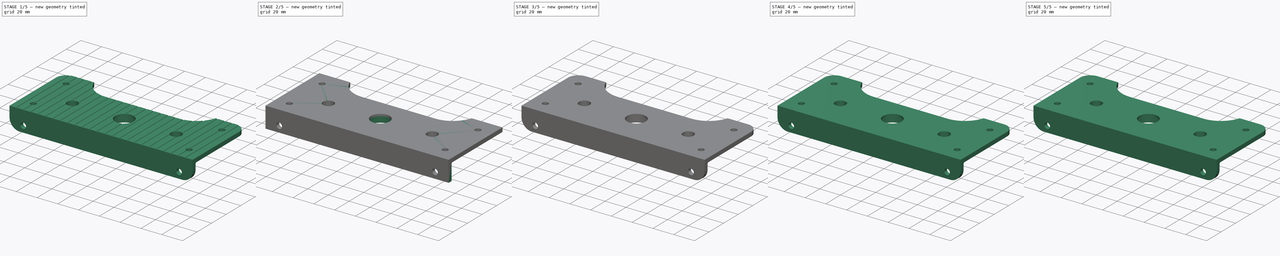
[diagram: build sequence overview — one tinted view per stage of 5, left to right]
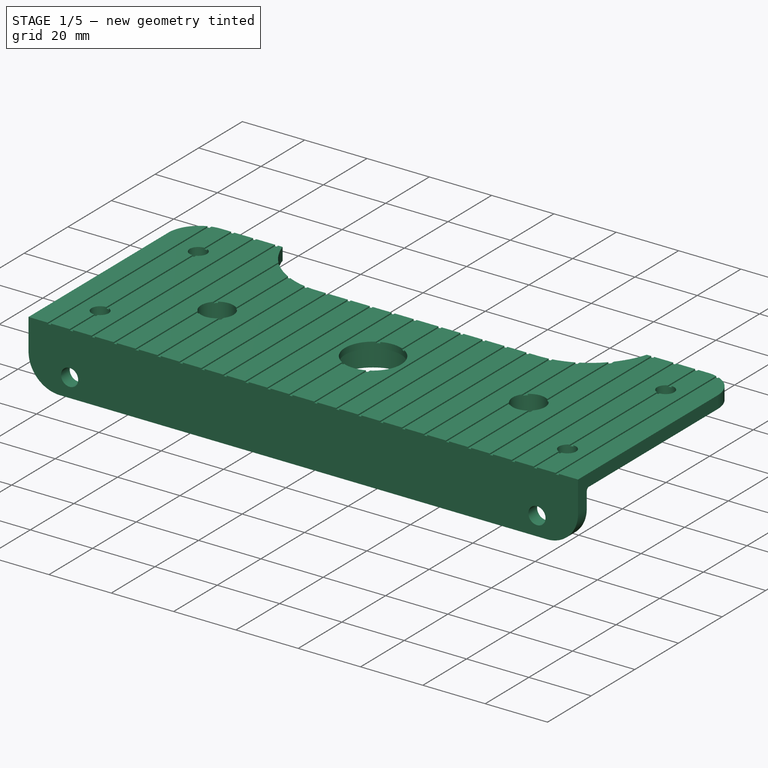
[diagram: stage 1 of 5 — iso view after this stage's code; geometry added in this stage tinted green]
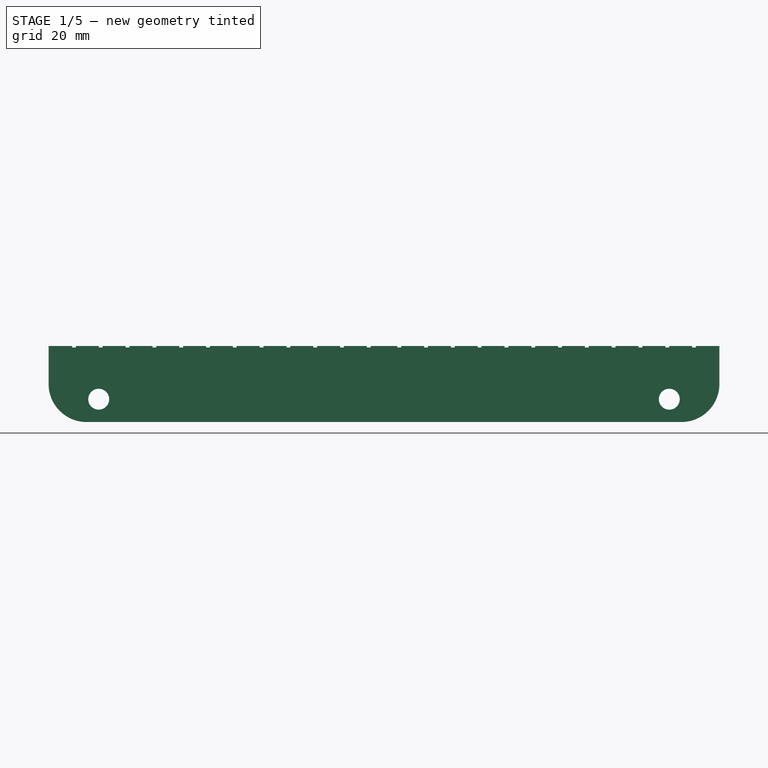
[diagram: stage 1 of 5 — front view after this stage's code; geometry added in this stage tinted green]
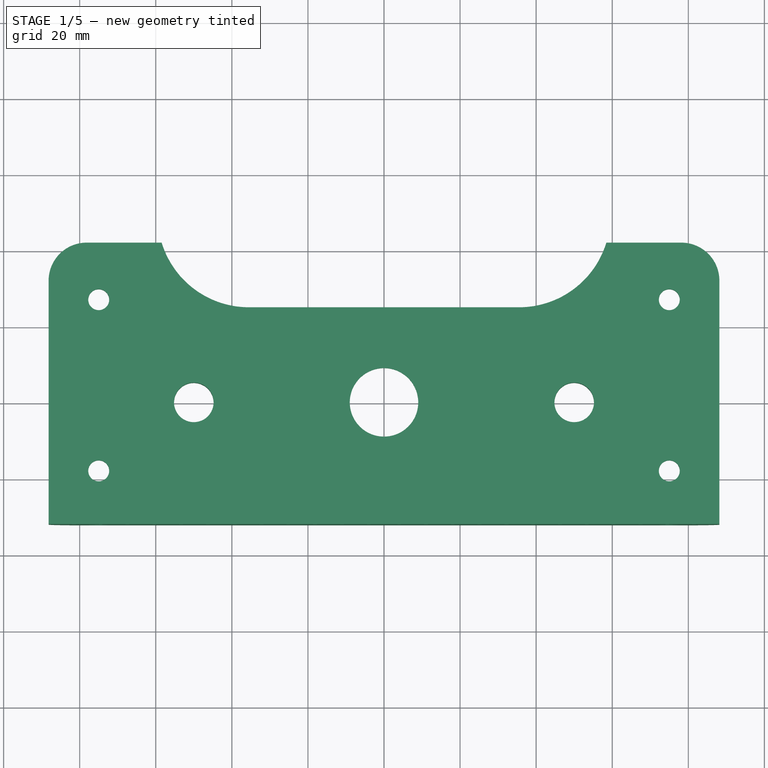
[diagram: stage 1 of 5 — top view after this stage's code; geometry added in this stage tinted green]
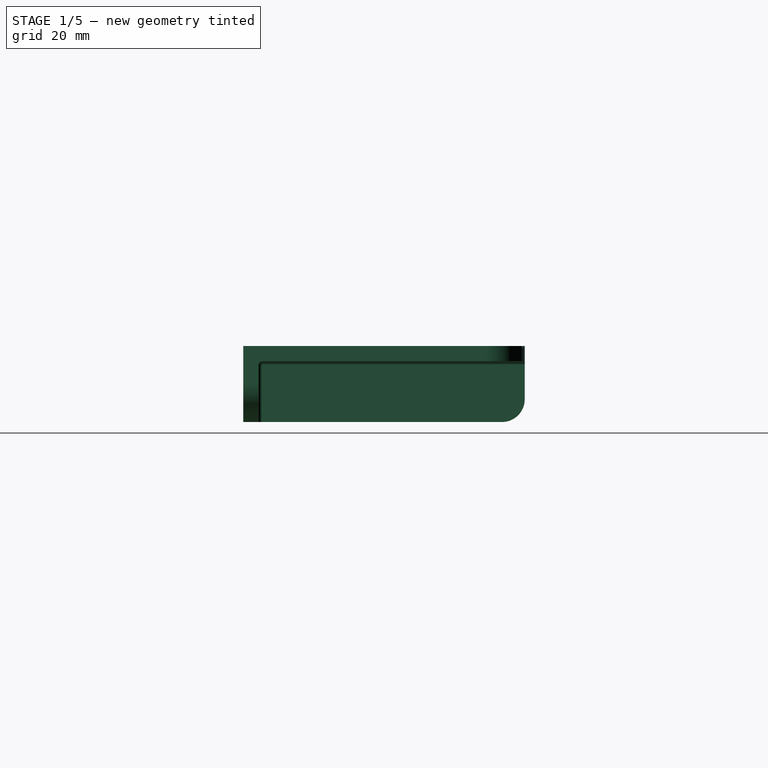
[diagram: stage 1 of 5 — right view after this stage's code; geometry added in this stage tinted green]
FCSTD DOCUMENT  (FreeCAD 0.16R6747 (Git))
Label: z_upper_v2.3
License: All rights reserved
LicenseURL: http://en.wikipedia.org/wiki/All_rights_reserved
objects: Drawing::FeatureViewPython×16, Sketcher::SketchObject×14, PartDesign::Fillet×14, PartDesign::Pocket×8, Drawing::FeatureViewPart×5, PartDesign::Pad×3, Part::Feature×2, PartDesign::LinearPattern×2, Drawing::FeaturePage×1
note: 54 computed .brp shape members not serialized (recipe doc carries the construction recipe); baked Part::Feature solids carry a one-line shape summary decoded from their .brp

FEATURE [Part::Feature] Fillet013001  label="Fillet014"
  shape: bbox 176.5 x 74.16 x 21.41 mm, 163 faces (baked)
FEATURE [Part::Feature] Fillet013001_solid  label="Fillet014 (Solid)"
  shape: bbox 176.5 x 74.16 x 21.41 mm, 163 faces (baked)
FEATURE [Sketcher::SketchObject] Sketch026
  ExternalGeometry = -> [Fillet013001_solid]
  Placement = pos=(0,0,20) rot=(0,0,1;0rad)
  Support = -> Fillet013001_solid [Face29]
  sketch-geometry (4):
    g0: Circle CenterX=-50 CenterY=0 CenterZ=0 NormalX=0 NormalY=0 NormalZ=1 Radius=5.2
    g1: Circle CenterX=-50 CenterY=0 CenterZ=0 NormalX=0 NormalY=0 NormalZ=1 Radius=6.2
    g2: Circle CenterX=50 CenterY=0 CenterZ=0 NormalX=0 NormalY=0 NormalZ=1 Radius=6.2
    g3: Circle CenterX=50 CenterY=0 CenterZ=0 NormalX=0 NormalY=0 NormalZ=1 Radius=5.2
  constraints (8):
    c: Coincident(g0,g1)
    c: Coincident(g0,g-3)
    c: Coincident(g2,g3)
    c: Coincident(g2,g-4)
    c: Radius(g0) = 5.2
    c: Radius(g1) = 6.2
    c: Equal(g0,g3)
    c: Equal(g1,g2)
FEATURE [PartDesign::Pad] Pad002
  Length = 8.6
  Length2 = 100
  Reversed = true
  Sketch = -> Sketch026
  Type = 0
FEATURE [Sketcher::SketchObject] Sketch024
  ExternalGeometry = -> [Fillet013001_solid]
  Placement = pos=(0,0,20) rot=(0,0,1;0rad)
  Support = -> Pad002 [Face62]
  sketch-geometry (4):
    g0: LineSegment StartX=-82.005 StartY=-32 StartZ=0 EndX=-81.005 EndY=-32 EndZ=0
    g1: LineSegment StartX=-81.005 StartY=-32 StartZ=0 EndX=-81.005 EndY=42 EndZ=0
    g2: LineSegment StartX=-81.005 StartY=42 StartZ=0 EndX=-82.005 EndY=42 EndZ=0
    g3: LineSegment StartX=-82.005 StartY=42 StartZ=0 EndX=-82.005 EndY=-32 EndZ=0
  constraints (12):
    c: Coincident(g0,g1)
    c: Coincident(g1,g2)
    c: Coincident(g2,g3)
    c: Coincident(g3,g0)
    c: Horizontal(g0)
    c: Horizontal(g2)
    c: Vertical(g1)
    c: Vertical(g3)
    c: PointOnObject(g0,g-3)
    c: PointOnObject(g1,g-4)
    c: DistanceX(g2,g1) = 1
    c: DistanceX(g0,g-3) = -6.17
FEATURE [PartDesign::Pocket] Pocket006
  Length = 0.4
  Sketch = -> Sketch024
  Type = 0
FEATURE [PartDesign::LinearPattern] LinearPattern
  Direction = -> Sketch024 [H_Axis]
  Length = 77.5
  Occurrences = 12
  Originals = -> [Pocket006]
FEATURE [Sketcher::SketchObject] Sketch025
  Placement = pos=(0,0,20) rot=(0,0,1;0rad)
  Support = -> LinearPattern [Face62]
  sketch-geometry (4):
    g0: LineSegment StartX=81.005 StartY=-32 StartZ=0 EndX=82.005 EndY=-32 EndZ=0
    g1: LineSegment StartX=82.005 StartY=-32 StartZ=0 EndX=82.005 EndY=42 EndZ=0
    g2: LineSegment StartX=82.005 StartY=42 StartZ=0 EndX=81.005 EndY=42 EndZ=0
    g3: LineSegment StartX=81.005 StartY=42 StartZ=0 EndX=81.005 EndY=-32 EndZ=0
  constraints (4):
    c: Coincident(g0,g1)
    c: Coincident(g0,g3)
    c: Coincident(g1,g2)
    c: Coincident(g2,g3)
FEATURE [PartDesign::Pocket] Pocket007
  Length = 0.4
  Sketch = -> Sketch025
  Type = 0
FEATURE [PartDesign::LinearPattern] LinearPattern001
  Direction = -> Sketch025 [H_Axis]
  Length = 77.5
  Occurrences = 12
  Originals = -> [Pocket007]
  Reversed = true
FEATURE [Drawing::FeatureViewPart] Ortho  label="Ortho_0_0"
  Direction = (0,0,1)
  HiddenWidth = 0.15
  LineWidth = 0.35
  Rotation = 90
  Scale = 0.5
  ShowHiddenLines = false
  ShowSmoothLines = false
  Source = -> LinearPattern001
  Tolerance = 0.05
  ViewResult = <blob: 16664 chars omitted>
  Visible = true
  X = 240
  Y = 130
FEATURE [Drawing::FeatureViewPart] Ortho001  label="Ortho_-1_0"
  Direction = (0,-1,0)
  HiddenWidth = 0.15
  LineWidth = 0.35
  Rotation = 180
  Scale = 0.5
  ShowHiddenLines = false
  ShowSmoothLines = false
  Source = -> LinearPattern001
  Tolerance = 0.05
  ViewResult = <blob: 6436 chars omitted>
  Visible = true
  X = 190
  Y = 130
FEATURE [Drawing::FeatureViewPart] Ortho002  label="Ortho_1_0"
  Direction = (0,1,0)
  HiddenWidth = 0.15
  LineWidth = 0.35
  Rotation = 180
  Scale = 0.5
  ShowHiddenLines = false
  ShowSmoothLines = false
  Source = -> LinearPattern001
  Tolerance = 0.05
  ViewResult = <blob: 20864 chars omitted>
  Visible = true
  X = 300
  Y = 130
FEATURE [Drawing::FeatureViewPart] Ortho003  label="Ortho_2_0"
  Direction = (0,0,-1)
  HiddenWidth = 0.15
  LineWidth = 0.35
  Rotation = -90
  Scale = 0.5
  ShowHiddenLines = false
  ShowSmoothLines = false
  Source = -> LinearPattern001
  Tolerance = 0.05
  ViewResult = <blob: 10561 chars omitted>
  Visible = true
  X = 160
  Y = 130
FEATURE [Drawing::FeatureViewPart] Ortho004  label="Ortho_0_1"
  Direction = (-1,0,0)
  HiddenWidth = 0.15
  LineWidth = 0.35
  Rotation = -90
  Scale = 0.5
  ShowHiddenLines = false
  ShowSmoothLines = false
  Source = -> LinearPattern001
  Tolerance = 0.05
  ViewResult = <blob: 2745 chars omitted>
  Visible = true
  X = 240
  Y = 60
FEATURE [Drawing::FeatureViewPython] text001  label="'C'"  # drawing view (typed FeaturePython)
  Rotation = 0
  ViewResult = <g> <text x="115.000000" y="100.000000" font-family="inherit" font-size="5" fill="rgb(0,0,0)" text-anchor="inherit" transform="rotate(0.000000 115.000000,100.000000)" >'C'</text> </g>
  Visible = true
  X = 0
  Y = 0
  click1_x = 115
  click1_y = 100
  rotation = 0
  text = 'C'
  textRenderer_addText_color = rgb(0,0,0)
  textRenderer_addText_family = inherit
  textRenderer_addText_size = 5
FEATURE [Drawing::FeatureViewPython] grabPoint001  # drawing view (typed FeaturePython)
  Rotation = 0
  ViewResult = <g> <line x1="153.60408147" y1="118.518257105" x2="153.60408147" y2="118.518257105" style="stroke:rgb(0,0,0);stroke-width:0.01" /> </g> 
  Visible = true
  X = 0
  Y = 0
  click1_x = 153.604
  click1_y = 118.518
FEATURE [Drawing::FeatureViewPython] grabPoint002  # drawing view (typed FeaturePython)
  Rotation = 0
  ViewResult = <g> <line x1="195.32029784" y1="111.887865099" x2="195.32029784" y2="111.887865099" style="stroke:rgb(0,0,0);stroke-width:0.01" /> </g> 
  Visible = true
  X = 0
  Y = 0
  click1_x = 195.32
  click1_y = 111.888
FEATURE [Drawing::FeatureViewPython] weld002  # drawing view (typed FeaturePython)
  Rotation = 0
  ViewResult = <g   >\n<line x1="128.860338" y1="105.358515" x2="153.604081" y2="118.518257" style="stroke:rgb(0,0,255);stroke-width:0.50" />\n<polygon points="153.604081,118.518257 151.424946,116.226671 150.072484,116.640008 150.485821,117.992470" style="fill:rgb(0,0,255);stroke:rgb(0,0,255);stroke-width:0" />\n<line x1="128.860338" y1="105.358515" x2="102.480741" y2="105.358515" style="stroke:rgb(0,0,255);stroke-width:0.50" />\n</g> 
  Visible = true
  X = 0
  Y = 0
  arrowL1 = 3
  arrowL2 = 1
  arrowW = 2
  click1_x = 128.86
  click1_y = 105.359
  click2_x = 102.481
  click2_y = 104.08
  lineColor = rgb(0,0,255)
  strokeWidth = 0.5
  textRenderer_color = rgb(0,0,255)
  textRenderer_family = inherit
  textRenderer_size = 3.6
FEATURE [Drawing::FeatureViewPython] text002  # drawing view (typed FeaturePython)
  Rotation = 0
  ViewResult = <g> <text x="206.844559" y="78.246342" font-family="inherit" font-size="5" fill="rgb(0,0,0)" text-anchor="inherit" transform="rotate(0.000000 206.844559,78.246342)" >'A'</text> </g>
  Visible = true
  X = 0
  Y = 0
  click1_x = 206.845
  click1_y = 78.2463
  rotation = 0
  text = 'A'
  textRenderer_addText_color = rgb(0,0,0)
  textRenderer_addText_family = inherit
  textRenderer_addText_size = 5
FEATURE [Drawing::FeatureViewPython] text003  # drawing view (typed FeaturePython)
  Rotation = 0
  ViewResult = <g> <text x="268.779729" y="78.246342" font-family="inherit" font-size="5" fill="rgb(0,0,0)" text-anchor="inherit" transform="rotate(0.000000 268.779729,78.246342)" >'A'</text> </g>
  Visible = true
  X = 0
  Y = 0
  click1_x = 268.78
  click1_y = 78.2463
  rotation = 0
  text = 'A'
  textRenderer_addText_color = rgb(0,0,0)
  textRenderer_addText_family = inherit
  textRenderer_addText_size = 5
FEATURE [Drawing::FeatureViewPython] text004  # drawing view (typed FeaturePython)
  Rotation = 0
  ViewResult = <g> <text x="308.919393" y="113.185342" font-family="inherit" font-size="5" fill="rgb(0,0,0)" text-anchor="inherit" transform="rotate(0.000000 308.919393,113.185342)" >'C'</text> </g>
  Visible = true
  X = 0
  Y = 0
  click1_x = 308.919
  click1_y = 113.185
  rotation = 0
  text = 'C'
  textRenderer_addText_color = rgb(0,0,0)
  textRenderer_addText_family = inherit
  textRenderer_addText_size = 5
FEATURE [Drawing::FeatureViewPython] weld001  # drawing view (typed FeaturePython)
  Rotation = 0
  ViewResult = <g   >\n<line x1="204.359769" y1="79.413300" x2="195.320298" y2="111.887865" style="stroke:rgb(0,0,255);stroke-width:0.50" />\n<polygon points="195.320298,111.887865 197.088153,109.265903 196.392940,108.034368 195.161405,108.729582" style="fill:rgb(0,0,255);stroke:rgb(0,0,255);stroke-width:0" />\n<line x1="204.359769" y1="79.413300" x2="215.797011" y2="79.413300" style="stroke:rgb(0,0,255);stroke-width:0.50" />\n</g> 
  Visible = true
  X = 0
  Y = 0
  arrowL1 = 3
  arrowL2 = 1
  arrowW = 2
  click1_x = 204.36
  click1_y = 79.4133
  click2_x = 215.797
  click2_y = 80.4923
  lineColor = rgb(0,0,255)
  strokeWidth = 0.5
  textRenderer_color = rgb(0,0,255)
  textRenderer_family = inherit
  textRenderer_size = 3.6
FEATURE [Drawing::FeatureViewPython] weld003  # drawing view (typed FeaturePython)
  Rotation = 0
  ViewResult = <g   >\n<line x1="215.666279" y1="79.431692" x2="242.500000" y2="100.065700" style="stroke:rgb(0,0,255);stroke-width:0.50" />\n<polygon points="242.500000,100.065700 240.731390,97.444247 239.329086,97.627400 239.512240,99.029703" style="fill:rgb(0,0,255);stroke:rgb(0,0,255);stroke-width:0" />\n<line x1="215.666279" y1="79.431692" x2="215.732252" y2="79.431692" style="stroke:rgb(0,0,255);stroke-width:0.50" />\n</g> 
  Visible = true
  X = 0
  Y = 0
  arrowL1 = 3
  arrowL2 = 1
  arrowW = 2
  click1_x = 215.666
  click1_y = 79.4317
  click2_x = 215.732
  click2_y = 79.3657
  lineColor = rgb(0,0,255)
  strokeWidth = 0.5
  textRenderer_color = rgb(0,0,255)
  textRenderer_family = inherit
  textRenderer_size = 3.6
FEATURE [Drawing::FeatureViewPython] grabPoint003  # drawing view (typed FeaturePython)
  Rotation = 0
  ViewResult = <g> <line x1="247.839545002" y1="69.1989897957" x2="247.839545002" y2="69.1989897957" style="stroke:rgb(0,0,0);stroke-width:0.01" /> </g> 
  Visible = true
  X = 0
  Y = 0
  click1_x = 247.84
  click1_y = 69.199
FEATURE [Drawing::FeatureViewPython] grabPoint004  # drawing view (typed FeaturePython)
  Rotation = 0
  ViewResult = <g> <line x1="291.274166274" y1="93.3673354905" x2="291.274166274" y2="93.3673354905" style="stroke:rgb(0,0,0);stroke-width:0.01" /> </g> 
  Visible = true
  X = 0
  Y = 0
  click1_x = 291.274
  click1_y = 93.3673
FEATURE [Drawing::FeatureViewPython] grabPoint005  # drawing view (typed FeaturePython)
  Rotation = 0
  ViewResult = <g> <line x1="297.544255959" y1="121.867743149" x2="297.544255959" y2="121.867743149" style="stroke:rgb(0,0,0);stroke-width:0.01" /> </g> 
  Visible = true
  X = 0
  Y = 0
  click1_x = 297.544
  click1_y = 121.868
FEATURE [Drawing::FeatureViewPython] weld004  # drawing view (typed FeaturePython)
  Rotation = 0
  ViewResult = <g   >\n<line x1="267.675829" y1="79.687140" x2="247.839545" y2="69.198990" style="stroke:rgb(0,0,255);stroke-width:0.50" />\n<polygon points="247.839545,69.198990 250.024229,71.485287 251.375685,71.068673 250.959071,69.717217" style="fill:rgb(0,0,255);stroke:rgb(0,0,255);stroke-width:0" />\n<line x1="267.675829" y1="79.687140" x2="276.225951" y2="79.687140" style="stroke:rgb(0,0,255);stroke-width:0.50" />\n</g> 
  Visible = true
  X = 0
  Y = 0
  arrowL1 = 3
  arrowL2 = 1
  arrowW = 2
  click1_x = 267.676
  click1_y = 79.6871
  click2_x = 276.226
  click2_y = 79.1171
  lineColor = rgb(0,0,255)
  strokeWidth = 0.5
  textRenderer_color = rgb(0,0,255)
  textRenderer_family = inherit
  textRenderer_size = 3.6
FEATURE [Drawing::FeatureViewPython] grabPoint006  # drawing view (typed FeaturePython)
  Rotation = 0
  ViewResult = <g> <line x1="291.061346544" y1="87.8223530852" x2="291.061346544" y2="87.8223530852" style="stroke:rgb(0,0,0);stroke-width:0.01" /> </g> 
  Visible = true
  X = 0
  Y = 0
  click1_x = 291.061
  click1_y = 87.8224
FEATURE [Drawing::FeatureViewPython] weld005  # drawing view (typed FeaturePython)
  Rotation = 0
  ViewResult = <g   >\n<line x1="276.065787" y1="79.648544" x2="291.061347" y2="87.822353" style="stroke:rgb(0,0,255);stroke-width:0.50" />\n<polygon points="291.061347,87.822353 288.905847,85.508520 287.549214,85.907953 287.948647,87.264586" style="fill:rgb(0,0,255);stroke:rgb(0,0,255);stroke-width:0" />\n<line x1="276.065787" y1="79.648544" x2="276.065787" y2="79.648544" style="stroke:rgb(0,0,255);stroke-width:0.50" />\n</g> 
  Visible = true
  X = 0
  Y = 0
  arrowL1 = 3
  arrowL2 = 1
  arrowW = 2
  click1_x = 276.066
  click1_y = 79.6485
  click2_x = 276.066
  click2_y = 79.6485
  lineColor = rgb(0,0,255)
  strokeWidth = 0.5
  textRenderer_color = rgb(0,0,255)
  textRenderer_family = inherit
  textRenderer_size = 3.6
FEATURE [Drawing::FeatureViewPython] weld007  # drawing view (typed FeaturePython)
  Rotation = 0
  ViewResult = <g   >\n<line x1="307.936481" y1="114.007462" x2="297.544256" y2="121.867743" style="stroke:rgb(0,0,255);stroke-width:0.50" />\n<polygon points="297.544256,121.867743 300.540172,120.855574 300.734488,119.454774 299.333688,119.260458" style="fill:rgb(0,0,255);stroke:rgb(0,0,255);stroke-width:0" />\n<line x1="307.936481" y1="114.007462" x2="316.894210" y2="114.007462" style="stroke:rgb(0,0,255);stroke-width:0.50" />\n</g> 
  Visible = true
  X = 0
  Y = 0
  arrowL1 = 3
  arrowL2 = 1
  arrowW = 2
  click1_x = 307.936
  click1_y = 114.007
  click2_x = 316.894
  click2_y = 115.054
  lineColor = rgb(0,0,255)
  strokeWidth = 0.5
  textRenderer_color = rgb(0,0,255)
  textRenderer_family = inherit
  textRenderer_size = 3.6
FEATURE [Drawing::FeaturePage] Page
  EditableTexts = AUTHOR NAME | CREATION DATE | SUPERVISOR NAME | CHECK DATE | SCALE | WEIGHT | NUMBER | SHEET | TITLE | SUBTITLE
  Group = -> [Ortho,Ortho001,Ortho002,Ortho003,Ortho004,text001,grabPoint001,grabPoint002,weld002,text002,text003,text004,weld001,weld003,grabPoint003,grabPoint004,grabPoint005,weld004,grabPoint006,weld005,weld007]
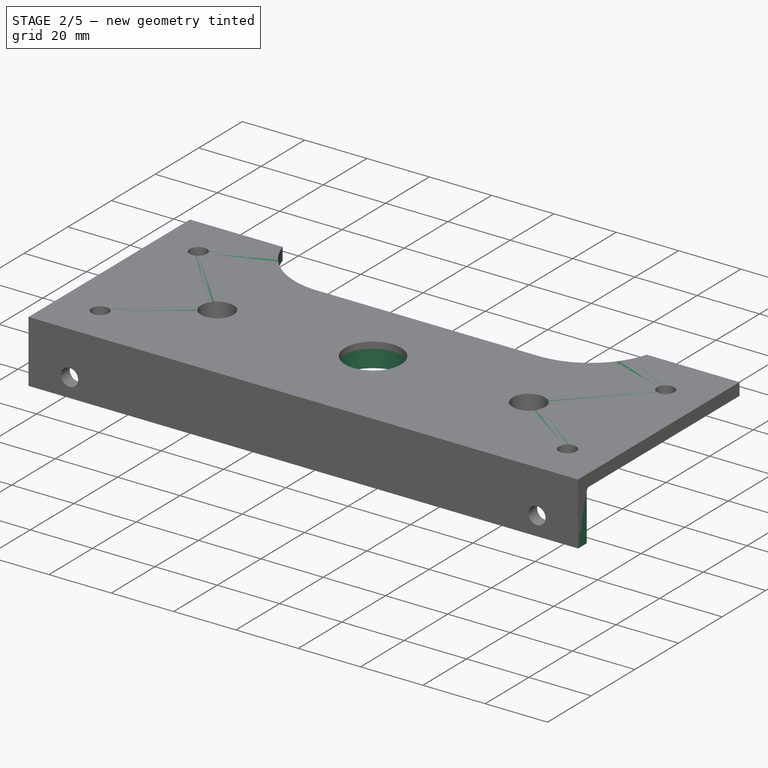
[diagram: stage 2 of 5 — iso view after this stage's code; geometry added in this stage tinted green]
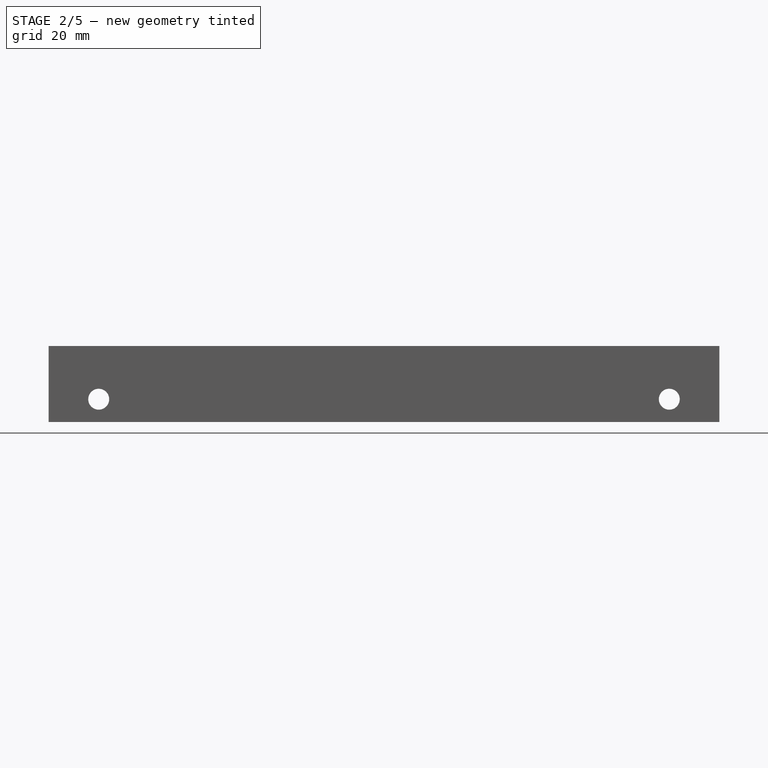
[diagram: stage 2 of 5 — front view after this stage's code; geometry added in this stage tinted green]
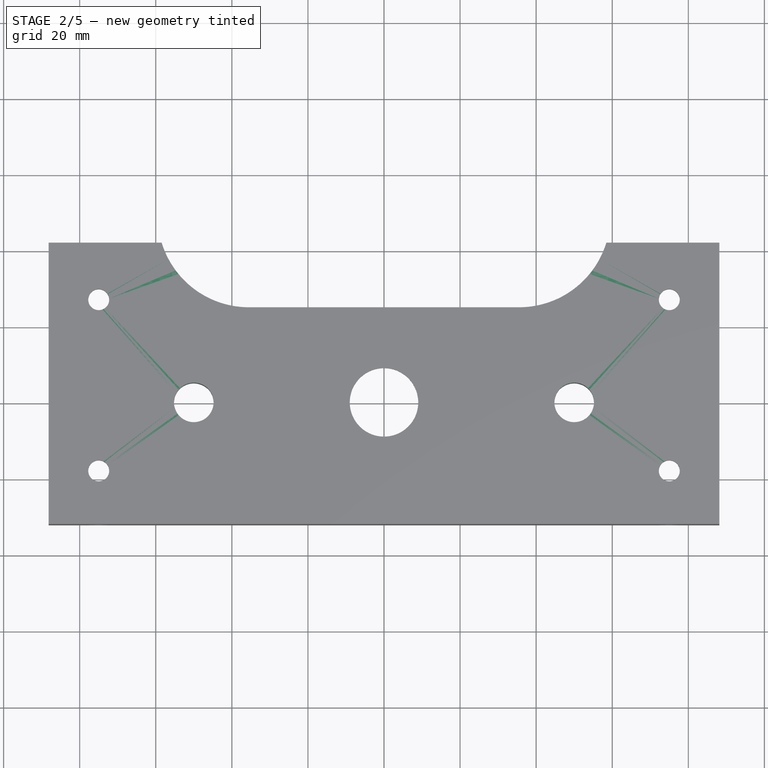
[diagram: stage 2 of 5 — top view after this stage's code; geometry added in this stage tinted green]
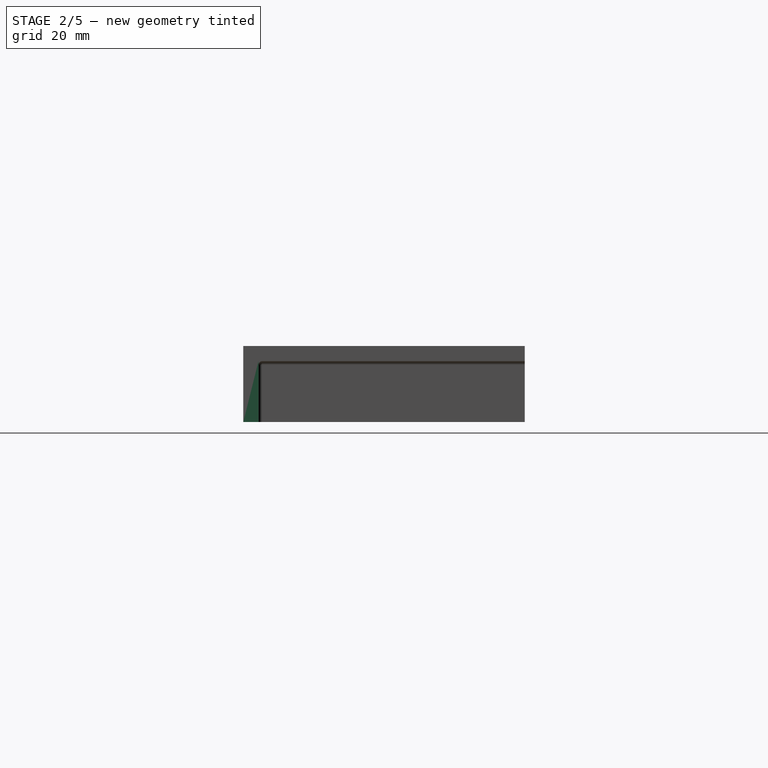
[diagram: stage 2 of 5 — right view after this stage's code; geometry added in this stage tinted green]
FEATURE [Sketcher::SketchObject] Sketch
  sketch-geometry (17):
    g0: Circle CenterX=0 CenterY=0 CenterZ=0 NormalX=0 NormalY=0 NormalZ=1 Radius=9
    g1: LineSegment StartX=-88.175 StartY=42 StartZ=0 EndX=88.175 EndY=42 EndZ=0
    g2: LineSegment StartX=88.175 StartY=42 StartZ=0 EndX=88.175 EndY=-32 EndZ=0
    g3: LineSegment StartX=88.175 StartY=-32 StartZ=0 EndX=-88.175 EndY=-32 EndZ=0
    g4: LineSegment StartX=-88.175 StartY=-32 StartZ=0 EndX=-88.175 EndY=42 EndZ=0
    g5: LineSegment [constr] StartX=-82.7227 StartY=0 StartZ=0 EndX=64.4936 EndY=0 EndZ=0
    g6: LineSegment [constr] StartX=0 StartY=75.0457 StartZ=0 EndX=0 EndY=-42.2499 EndZ=0
    g7: Circle CenterX=-50 CenterY=0 CenterZ=0 NormalX=0 NormalY=0 NormalZ=1 Radius=5.3
    g8: Circle CenterX=50 CenterY=0 CenterZ=0 NormalX=0 NormalY=0 NormalZ=1 Radius=5.3
    g9: LineSegment [constr] StartX=-75 StartY=27 StartZ=0 EndX=75 EndY=27 EndZ=0
    g10: LineSegment [constr] StartX=75 StartY=27 StartZ=0 EndX=75 EndY=-18 EndZ=0
    g11: LineSegment [constr] StartX=75 StartY=-18 StartZ=0 EndX=-75 EndY=-18 EndZ=0
    g12: LineSegment [constr] StartX=-75 StartY=-18 StartZ=0 EndX=-75 EndY=27 EndZ=0
    g13: Circle CenterX=-75 CenterY=27 CenterZ=0 NormalX=0 NormalY=0 NormalZ=1 Radius=2.75
    g14: Circle CenterX=-75 CenterY=-18 CenterZ=0 NormalX=0 NormalY=0 NormalZ=1 Radius=2.75
    g15: Circle CenterX=75 CenterY=-18 CenterZ=0 NormalX=0 NormalY=0 NormalZ=1 Radius=2.75
    g16: Circle CenterX=75 CenterY=27 CenterZ=0 NormalX=0 NormalY=0 NormalZ=1 Radius=2.75
  constraints (44):
    c: Radius(g0) = 9
    c: Coincident(g0,g-1)
    c: Coincident(g1,g2)
    c: Coincident(g2,g3)
    c: Coincident(g3,g4)
    c: Coincident(g4,g1)
    c: Horizontal(g1)
    c: Horizontal(g3)
    c: Vertical(g2)
    c: Vertical(g4)
    c: PointOnObject(g5,g-1)
    c: Horizontal(g5)
    c: Vertical(g6)
    c: PointOnObject(g-1,g6)
    c: DistanceX(g-1,g2) = 88.175
    c: DistanceX(g3) = -176.35
    c: DistanceY(g2) = -74
    c: PointOnObject(g7,g5)
    c: PointOnObject(g8,g5)
    c: Radius(g7) = 5.3
    c: Radius(g8) = 5.3
    c: DistanceX(g-1,g7) = -50
    c: DistanceX(g-1,g8) = 50
    c: Coincident(g9,g10)
    c: Coincident(g10,g11)
    c: Coincident(g11,g12)
    c: Coincident(g12,g9)
    c: Horizontal(g9)
    c: Horizontal(g11)
    c: Vertical(g10)
    c: Vertical(g12)
    c: DistanceY(g11,g3) = -14
    c: DistanceY(g1,g9) = -15
    c: Coincident(g9,g16)
    c: Radius(g16) = 2.75
    c: Coincident(g10,g15)
    c: Coincident(g11,g14)
    c: Coincident(g9,g13)
    c: Equal(g14,g13)
    c: Equal(g13,g16)
    c: Equal(g16,g15)
    c: DistanceY(g-1,g2) = -32
    c: DistanceX(g6,g10) = 75
    c: DistanceX(g-1,g11) = -75
FEATURE [PartDesign::Pad] Pad
  Length = 20
  Length2 = 100
  Sketch = -> Sketch
  Type = 0
FEATURE [Sketcher::SketchObject] Sketch005
  Placement = pos=(0,0,0) rot=(1,0,0;3.14159rad)
  Support = -> Pad [Face12]
  sketch-geometry (1):
    g0: Circle CenterX=0 CenterY=0 CenterZ=0 NormalX=0 NormalY=0 NormalZ=1 Radius=10.95
  constraints (2):
    c: Radius(g0) = 10.95
    c: Coincident(g0,g-1)
FEATURE [PartDesign::Pocket] Pocket
  Length = 18
  Sketch = -> Sketch005
  Type = 0
FEATURE [Sketcher::SketchObject] Sketch017
  ExternalGeometry = -> [Pocket]
  Placement = pos=(0,0,0) rot=(1,0,0;3.14159rad)
  Support = -> Pocket [Face4]
  sketch-geometry (38):
    g0: LineSegment StartX=-100 StartY=28 StartZ=0 EndX=-63.5 EndY=28 EndZ=0
    g1: LineSegment StartX=100 StartY=28 StartZ=0 EndX=100 EndY=-50 EndZ=0
    g2: LineSegment StartX=100 StartY=-50 StartZ=0 EndX=63.5 EndY=-50 EndZ=0
    g3: LineSegment StartX=-100 StartY=-50 StartZ=0 EndX=-100 EndY=28 EndZ=0
    g4: ArcOfCircle CenterX=0 CenterY=0 CenterZ=0 NormalX=0 NormalY=0 NormalZ=1 Radius=14 StartAngle=1.71414 EndAngle=2.99825
    g5: LineSegment [constr] StartX=0 StartY=28 StartZ=0 EndX=0 EndY=-50 EndZ=0
    g6: LineSegment [constr] StartX=-100 StartY=0 StartZ=0 EndX=100 EndY=0 EndZ=0
    g7: LineSegment StartX=-2 StartY=28 StartZ=0 EndX=-2 EndY=13.8564 EndZ=0
    g8: LineSegment StartX=2 StartY=28 StartZ=0 EndX=2 EndY=13.8564 EndZ=0
    g9: LineSegment StartX=-59.5 StartY=28 StartZ=0 EndX=-2 EndY=28 EndZ=0
    g10: LineSegment StartX=2 StartY=28 StartZ=0 EndX=59.5 EndY=28 EndZ=0
    g11: LineSegment StartX=-2 StartY=-50 StartZ=0 EndX=-59.5 EndY=-50 EndZ=0
    g12: ArcOfCircle CenterX=0 CenterY=0 CenterZ=0 NormalX=0 NormalY=0 NormalZ=1 Radius=14 StartAngle=4.85574 EndAngle=6.13984
    g13: LineSegment StartX=-2 StartY=-13.8564 StartZ=0 EndX=-2 EndY=-50 EndZ=0
    g14: LineSegment StartX=2 StartY=-13.8564 StartZ=0 EndX=2 EndY=-50 EndZ=0
    g15: LineSegment StartX=-63.5 StartY=28 StartZ=0 EndX=-63.5 EndY=-50 EndZ=0
    g16: LineSegment StartX=63.5 StartY=28 StartZ=0 EndX=63.5 EndY=-50 EndZ=0
    g17: LineSegment StartX=-59.5 StartY=28 StartZ=0 EndX=-59.5 EndY=2 EndZ=0
    g18: LineSegment StartX=59.5 StartY=28 StartZ=0 EndX=59.5 EndY=2 EndZ=0
    g19: LineSegment StartX=63.5 StartY=28 StartZ=0 EndX=100 EndY=28 EndZ=0
    g20: LineSegment StartX=59.5 StartY=-50 StartZ=0 EndX=2 EndY=-50 EndZ=0
    g21: LineSegment StartX=-63.5 StartY=-50 StartZ=0 EndX=-100 EndY=-50 EndZ=0
    g22: ArcOfCircle CenterX=-50 CenterY=0 CenterZ=0 NormalX=0 NormalY=0 NormalZ=1 Radius=8 StartAngle=3.39427 EndAngle=6.03051
    g23: ArcOfCircle CenterX=50 CenterY=0 CenterZ=0 NormalX=0 NormalY=0 NormalZ=1 Radius=8 StartAngle=0.25268 EndAngle=2.88891
    g24: LineSegment StartX=-59.5 StartY=2 StartZ=0 EndX=-57.746 EndY=2 EndZ=0
    g25: LineSegment StartX=-59.5 StartY=-2 StartZ=0 EndX=-57.746 EndY=-2 EndZ=0
    g26: LineSegment StartX=13.8564 StartY=2 StartZ=0 EndX=42.254 EndY=2 EndZ=0
    g27: LineSegment StartX=13.8564 StartY=-2 StartZ=0 EndX=42.254 EndY=-2 EndZ=0
    g28: LineSegment StartX=57.746 StartY=2 StartZ=0 EndX=59.5 EndY=2 EndZ=0
    g29: LineSegment StartX=57.746 StartY=-2 StartZ=0 EndX=59.5 EndY=-2 EndZ=0
    g30: LineSegment StartX=59.5 StartY=-2 StartZ=0 EndX=59.5 EndY=-50 EndZ=0
    g31: ArcOfCircle CenterX=50 CenterY=0 CenterZ=0 NormalX=0 NormalY=0 NormalZ=1 Radius=8 StartAngle=3.39427 EndAngle=6.03051
    g32: ArcOfCircle CenterX=0 CenterY=0 CenterZ=0 NormalX=0 NormalY=0 NormalZ=1 Radius=14 StartAngle=0.143348 EndAngle=1.42745
    g33: ArcOfCircle CenterX=0 CenterY=0 CenterZ=0 NormalX=0 NormalY=0 NormalZ=1 Radius=14 StartAngle=3.28494 EndAngle=4.56904
    g34: LineSegment StartX=-59.5 StartY=-2 StartZ=0 EndX=-59.5 EndY=-50 EndZ=0
    g35: LineSegment StartX=-42.254 StartY=-2 StartZ=0 EndX=-13.8564 EndY=-2 EndZ=0
    g36: LineSegment StartX=-42.254 StartY=2 StartZ=0 EndX=-13.8564 EndY=2 EndZ=0
    g37: ArcOfCircle CenterX=-50 CenterY=0 CenterZ=0 NormalX=0 NormalY=0 NormalZ=1 Radius=8 StartAngle=0.25268 EndAngle=2.88891
  constraints (111):
    c: Coincident(g19,g1)
    c: Coincident(g1,g2)
    c: Coincident(g21,g3)
    c: Coincident(g3,g0)
    c: Horizontal(g0)
    c: Horizontal(g2)
    c: Vertical(g1)
    c: Vertical(g3)
    c: DistanceX(g-1,g19) = 100
    c: DistanceX(g-1,g0) = -100
    c: DistanceY(g19,g-6) = 4
    c: DistanceY(g-1,g1) = -50
    c: PointOnObject(g-1,g5)
    c: Vertical(g5)
    c: PointOnObject(g5,g0)
    c: Horizontal(g6)
    c: PointOnObject(g6,g1)
    c: PointOnObject(g6,g3)
    c: PointOnObject(g-1,g6)
    c: PointOnObject(g4,g5)
    c: Radius(g4) = 14
    c: Vertical(g7)
    c: Vertical(g8)
    c: Tangent(g0,g9)
    c: PointOnObject(g8,g9)
    c: DistanceX(g-1,g8) = 2
    c: Coincident(g9,g7)
    c: Coincident(g11,g13)
    c: Tangent(g2,g11)
    c: Coincident(g4,g-1)
    c: Equal(g4,g12)
    c: PointOnObject(g33,g7)
    c: Coincident(g4,g12)
    c: PointOnObject(g12,g8)
    c: Tangent(g7,g13)
    c: Tangent(g8,g14)
    c: PointOnObject(g13,g4)
    c: PointOnObject(g14,g12)
    c: Coincident(g7,g4)
    c: Coincident(g8,g32)
    c: DistanceX(g-1,g11) = -2
    c: DistanceY(g-1,g5) = -50
    c: Vertical(g15)
    c: Vertical(g16)
    c: Vertical(g18)
    c: Vertical(g17)
    c: Coincident(g20,g14)
    c: Horizontal(g10)
    c: Coincident(g8,g10)
    c: Coincident(g10,g18)
    c: Coincident(g19,g16)
    c: Tangent(g10,g19)
    c: Coincident(g2,g16)
    c: Coincident(g20,g30)
    c: Tangent(g2,g20)
    c: Coincident(g0,g15)
    c: DistanceX(g-1,g0) = -63.5
    c: DistanceX(g17,g0) = -4
    c: Coincident(g9,g17)
    c: Coincident(g21,g15)
    c: Coincident(g11,g34)
    c: Radius(g22) = 8
    c: Coincident(g22,g-3)
    c: Coincident(g23,g-5)
    c: Radius(g23) = 8
    c: Horizontal(g21)
    c: PointOnObject(g15,g2)
    c: DistanceX(g-1,g16) = 63.5
    c: DistanceX(g16,g10) = -4
    c: Horizontal(g24)
    c: Horizontal(g25)
    c: Horizontal(g26)
    c: Horizontal(g27)
    c: PointOnObject(g35,g4)
    c: PointOnObject(g25,g17)
    c: PointOnObject(g29,g18)
    c: Tangent(g26,g28)
    c: PointOnObject(g27,g23)
    c: Tangent(g27,g29)
    c: Coincident(g18,g28)
    c: Tangent(g18,g30)
    c: PointOnObject(g30,g29)
    c: Coincident(g23,g28)
    c: Coincident(g31,g29)
    c: Equal(g23,g31)
    c: Coincident(g23,g26)
    c: Coincident(g23,g31)
    c: PointOnObject(g31,g27)
    c: Equal(g12,g32)
    c: Coincident(g32,g26)
    c: Coincident(g12,g32)
    c: Coincident(g12,g27)
    c: DistanceY(g-1,g26) = 2
    c: DistanceY(g26,g12) = -4
    c: Equal(g4,g33)
    c: Coincident(g4,g36)
    c: Coincident(g4,g33)
    c: PointOnObject(g33,g25)
    c: DistanceY(g-1,g4) = 2
    c: DistanceY(g4,g35) = -4
    c: Coincident(g17,g24)
    c: Tangent(g17,g34)
    c: PointOnObject(g34,g25)
    c: Coincident(g25,g22)
    c: Tangent(g25,g35)
    c: Coincident(g24,g37)
    c: Tangent(g24,g36)
    c: Equal(g22,g37)
    c: Coincident(g37,g36)
    c: Coincident(g22,g37)
    c: Coincident(g22,g35)
FEATURE [PartDesign::Pocket] Pocket001
  Length = 16
  Sketch = -> Sketch017
  Type = 0
FEATURE [Sketcher::SketchObject] Sketch015
  Placement = pos=(0,0,20) rot=(0,0,1;0rad)
  Support = -> Pocket001 [Face14]
  sketch-geometry (8):
    g0: LineSegment [constr] StartX=0 StartY=116.469 StartZ=0 EndX=0 EndY=-120.983 EndZ=0
    g1: LineSegment [constr] StartX=-98.1777 StartY=0 StartZ=0 EndX=98.6474 EndY=0 EndZ=0
    g2: LineSegment StartX=-59.5 StartY=95 StartZ=0 EndX=59.5 EndY=95 EndZ=0
    g3: LineSegment StartX=59.5 StartY=49 StartZ=0 EndX=59.5 EndY=95 EndZ=0
    g4: LineSegment StartX=-59.5 StartY=49 StartZ=0 EndX=-59.5 EndY=95 EndZ=0
    g5: LineSegment StartX=-35.5 StartY=25 StartZ=0 EndX=35.5 EndY=25 EndZ=0
    g6: ArcOfCircle CenterX=-35.5 CenterY=49 CenterZ=0 NormalX=0 NormalY=0 NormalZ=1 Radius=24 StartAngle=3.14159 EndAngle=4.71239
    g7: ArcOfCircle CenterX=35.5 CenterY=49 CenterZ=0 NormalX=0 NormalY=0 NormalZ=1 Radius=24 StartAngle=4.71239 EndAngle=6.28319
  constraints (15):
    c: Coincident(g2,g4)
    c: Coincident(g3,g2)
    c: Horizontal(g2)
    c: Vertical(g4)
    c: Vertical(g3)
    c: DistanceX(g-1,g2) = 59.5
    c: DistanceX(g-1,g2) = -59.5
    c: Horizontal(g5)
    c: Tangent(g4,g6) = 1.5708
    c: Tangent(g5,g6) = -1.5708
    c: Tangent(g5,g7) = -1.5708
    c: Tangent(g3,g7) = -1.5708
    c: DistanceY(g-1,g5) = 25
    c: Radius(g7) = 24
    c: Equal(g7,g6)
FEATURE [Sketcher::SketchObject] Sketch019
  sketch-geometry (4):
    g0: LineSegment StartX=-60.2196 StartY=-15.1286 StartZ=0 EndX=-45.0011 EndY=-15.1286 EndZ=0
    g1: LineSegment StartX=-45.0011 StartY=-15.1286 StartZ=0 EndX=-45.0011 EndY=-22.3141 EndZ=0
    g2: LineSegment StartX=-45.0011 StartY=-22.3141 StartZ=0 EndX=-60.2196 EndY=-22.3141 EndZ=0
    g3: LineSegment StartX=-60.2196 StartY=-22.3141 StartZ=0 EndX=-60.2196 EndY=-15.1286 EndZ=0
  constraints (8):
    c: Coincident(g0,g1)
    c: Coincident(g1,g2)
    c: Coincident(g2,g3)
    c: Coincident(g3,g0)
    c: Horizontal(g0)
    c: Horizontal(g2)
    c: Vertical(g1)
    c: Vertical(g3)
FEATURE [Sketcher::SketchObject] Sketch020
  sketch-geometry (4):
    g0: LineSegment StartX=5.18683 StartY=-12.8796 StartZ=0 EndX=5.18683 EndY=-28.1961 EndZ=0
    g1: LineSegment StartX=5.18683 StartY=-28.1961 StartZ=0 EndX=-4.62916 EndY=-28.1961 EndZ=0
    g2: LineSegment StartX=-4.62916 StartY=-28.1961 StartZ=0 EndX=-4.62916 EndY=-13.0904 EndZ=0
    g3: ArcOfCircle CenterX=0 CenterY=0 CenterZ=0 NormalX=0 NormalY=0 NormalZ=1 Radius=13.8848 StartAngle=4.37248 EndAngle=5.09523
  constraints (4):
    c: Coincident(g0,g1)
    c: Coincident(g0,g3)
    c: Coincident(g1,g2)
    c: Coincident(g2,g3)
FEATURE [PartDesign::Pocket] Pocket002
  Length = 5
  Sketch = -> Sketch015
  Type = 1
FEATURE [Sketcher::SketchObject] Sketch014
  Placement = pos=(0,-32,0) rot=(1,0,0;1.5708rad)
  Support = -> Pocket002 [Face27]
  sketch-geometry (3):
    g0: LineSegment [constr] StartX=-75 StartY=6 StartZ=0 EndX=75 EndY=6 EndZ=0
    g1: Circle CenterX=-75 CenterY=6 CenterZ=0 NormalX=0 NormalY=0 NormalZ=1 Radius=2.75
    g2: Circle CenterX=75 CenterY=6 CenterZ=0 NormalX=0 NormalY=0 NormalZ=1 Radius=2.75
  constraints (8):
    c: Horizontal(g0)
    c: DistanceX(g-1,g0) = -75
    c: DistanceX(g-1,g0) = 75
    c: Coincident(g1,g0)
    c: Coincident(g2,g0)
    c: Radius(g2) = 2.75
    c: Equal(g1,g2)
    c: DistanceY(g-1,g0) = 6
FEATURE [PartDesign::Pocket] Pocket003
  Length = 5
  Sketch = -> Sketch014
  Type = 0
FEATURE [Sketcher::SketchObject] Sketch018
  Placement = pos=(0,0,0) rot=(1,0,0;3.14159rad)
  Support = -> Pocket003 [Face3]
  sketch-geometry (8):
    g0: ArcOfCircle CenterX=0 CenterY=0 CenterZ=0 NormalX=0 NormalY=0 NormalZ=1 Radius=16 StartAngle=3.39427 EndAngle=6.03051
    g1: ArcOfCircle CenterX=-50 CenterY=1e-12 CenterZ=0 NormalX=0 NormalY=0 NormalZ=1 Radius=8 StartAngle=0.523599 EndAngle=5.75959
    g2: LineSegment StartX=-43.0718 StartY=4 StartZ=0 EndX=-15.4919 EndY=4 EndZ=0
    g3: LineSegment StartX=-43.0718 StartY=-4 StartZ=0 EndX=-15.4919 EndY=-4 EndZ=0
    g4: LineSegment StartX=15.4919 StartY=4 StartZ=0 EndX=-43.0718 EndY=4 EndZ=0
    g5: LineSegment StartX=15.4919 StartY=-4 StartZ=0 EndX=-43.0718 EndY=-4 EndZ=0
    g6: ArcOfCircle CenterX=0 CenterY=0 CenterZ=0 NormalX=0 NormalY=0 NormalZ=1 Radius=16 StartAngle=0.25268 EndAngle=2.88891
    g7: ArcOfCircle CenterX=-50 CenterY=0 CenterZ=0 NormalX=0 NormalY=0 NormalZ=1 Radius=8 StartAngle=5.75959 EndAngle=6.80678
  constraints (9):
    c: Coincident(g0,g3)
    c: Coincident(g0,g5)
    c: Coincident(g1,g2)
    c: Coincident(g1,g3)
    c: Coincident(g1,g4)
    c: Coincident(g1,g5)
    c: Coincident(g1,g7)
    c: Coincident(g2,g6)
    c: Coincident(g4,g6)
FEATURE [Sketcher::SketchObject] Sketch021
  Placement = pos=(0,0,0) rot=(1,0,0;3.14159rad)
  Support = -> Pocket003 [Face3]
  sketch-geometry (12):
    g0: ArcOfCircle CenterX=0 CenterY=0 CenterZ=0 NormalX=0 NormalY=0 NormalZ=1 Radius=15 StartAngle=4.98232 EndAngle=6.01325
    g1: LineSegment StartX=-4 StartY=-14.4568 StartZ=0 EndX=-4 EndY=-30 EndZ=0
    g2: LineSegment StartX=-4 StartY=-30 StartZ=0 EndX=4 EndY=-30 EndZ=0
    g3: LineSegment StartX=4 StartY=-30 StartZ=0 EndX=4 EndY=-14.4568 EndZ=0
    g4: LineSegment StartX=14.4568 StartY=4 StartZ=0 EndX=46.4568 EndY=4 EndZ=0
    g5: LineSegment StartX=46.4568 StartY=4 StartZ=0 EndX=46.4568 EndY=-4 EndZ=0
    g6: LineSegment StartX=46.4568 StartY=-4 StartZ=0 EndX=14.4568 EndY=-4 EndZ=0
    g7: LineSegment StartX=-14.4568 StartY=4 StartZ=0 EndX=-46.4568 EndY=4 EndZ=0
    g8: LineSegment StartX=-46.4568 StartY=4 StartZ=0 EndX=-46.4568 EndY=-4 EndZ=0
    g9: LineSegment StartX=-46.4568 StartY=-4 StartZ=0 EndX=-14.4568 EndY=-4 EndZ=0
    g10: ArcOfCircle CenterX=0 CenterY=0 CenterZ=0 NormalX=0 NormalY=0 NormalZ=1 Radius=15 StartAngle=3.41153 EndAngle=4.44246
    g11: ArcOfCircle CenterX=0 CenterY=0 CenterZ=0 NormalX=0 NormalY=0 NormalZ=1 Radius=15 StartAngle=0.269933 EndAngle=2.87166
  constraints (40):
    c: Coincident(g0,g-1)
    c: Radius(g0) = 15
    c: Vertical(g3)
    c: Vertical(g1)
    c: Horizontal(g2)
    c: Coincident(g1,g2)
    c: Coincident(g2,g3)
    c: DistanceX(g-1,g1) = -4
    c: DistanceX(g-1,g2) = 4
    c: Coincident(g1,g10)
    c: Coincident(g3,g0)
    c: DistanceY(g-1,g2) = -30
    c: Coincident(g4,g5)
    c: Coincident(g5,g6)
    c: Horizontal(g4)
    c: Horizontal(g6)
    c: Vertical(g5)
    c: Coincident(g7,g8)
    c: Coincident(g8,g9)
    c: Horizontal(g7)
    c: Horizontal(g9)
    c: Vertical(g8)
    c: DistanceY(g-1,g4) = 4
    c: DistanceY(g-1,g7) = 4
    c: DistanceY(g-1,g9) = -4
    c: DistanceY(g-1,g6) = -4
    c: Equal(g0,g10)
    c: PointOnObject(g11,g7)
    c: PointOnObject(g10,g9)
    c: Coincident(g0,g10)
    c: Equal(g0,g11)
    c: PointOnObject(g0,g6)
    c: PointOnObject(g11,g4)
    c: Coincident(g0,g11)
    c: Coincident(g7,g11)
    c: Coincident(g9,g10)
    c: Coincident(g4,g11)
    c: Coincident(g0,g6)
    c: DistanceX(g4) = 32
    c: DistanceX(g7) = -32
FEATURE [PartDesign::Pocket] Pocket004
  Length = 11.4
  Sketch = -> Sketch021
  Type = 0
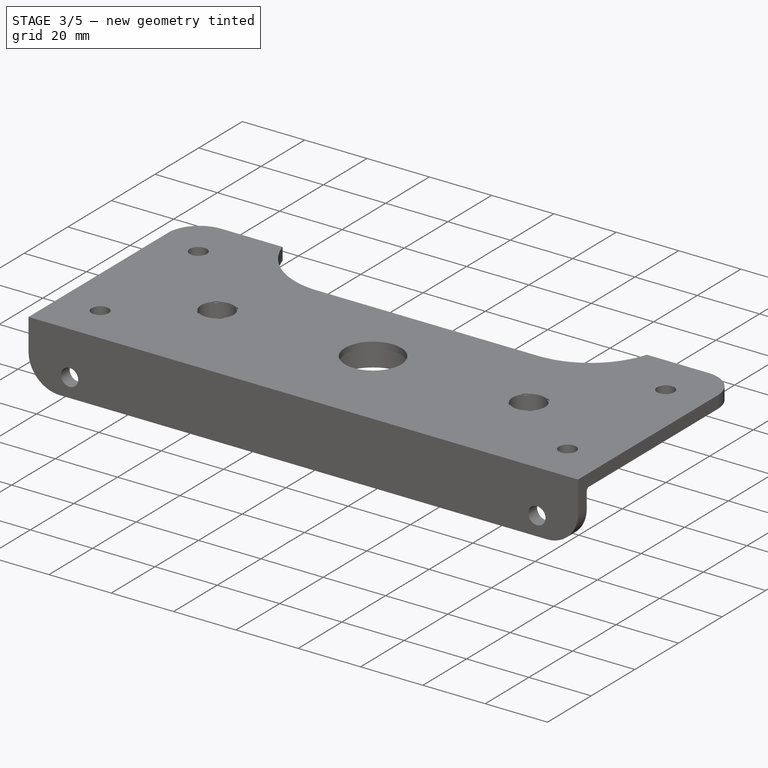
[diagram: stage 3 of 5 — iso view after this stage's code; geometry added in this stage tinted green]
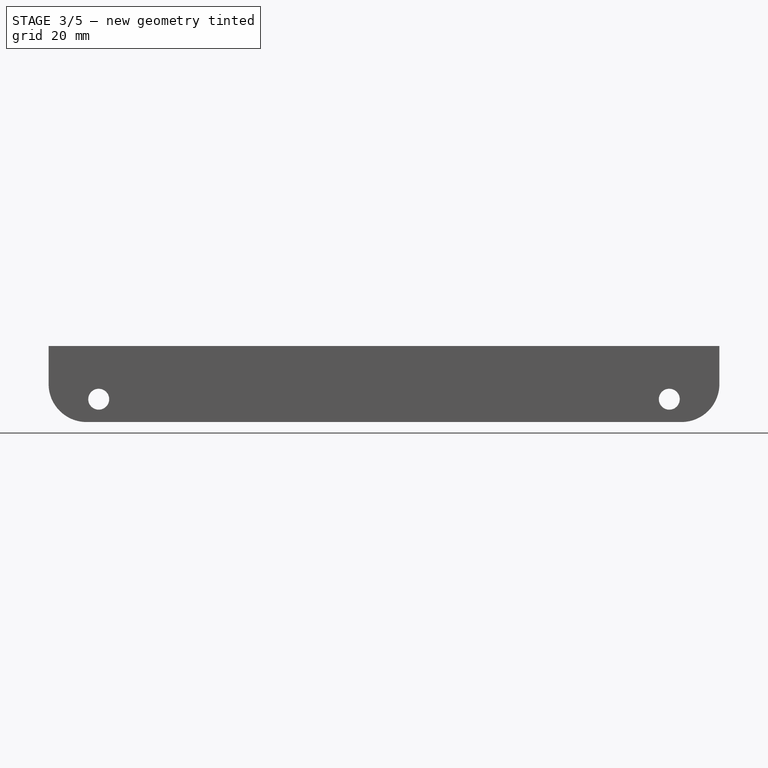
[diagram: stage 3 of 5 — front view after this stage's code; geometry added in this stage tinted green]
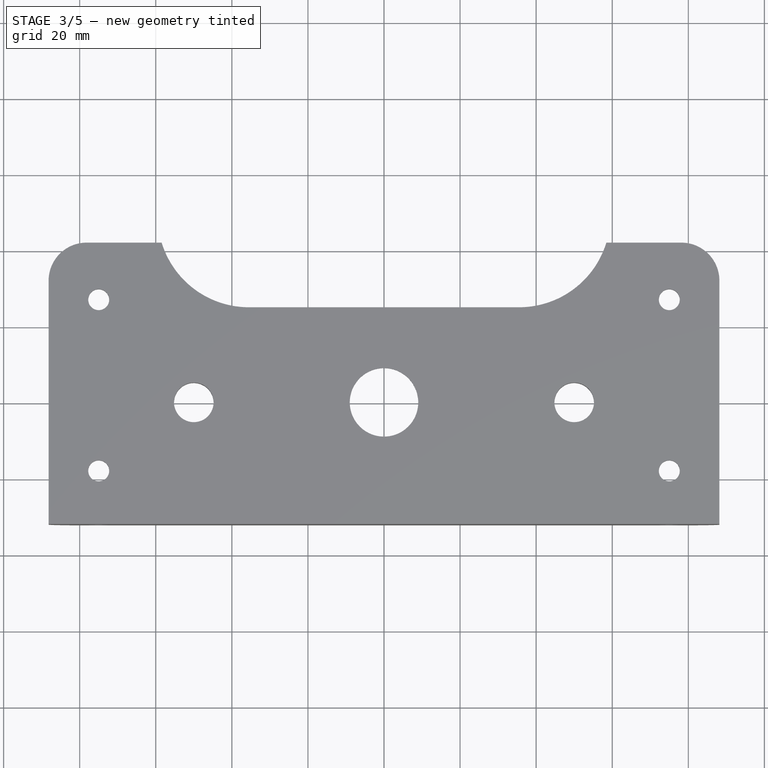
[diagram: stage 3 of 5 — top view after this stage's code; geometry added in this stage tinted green]
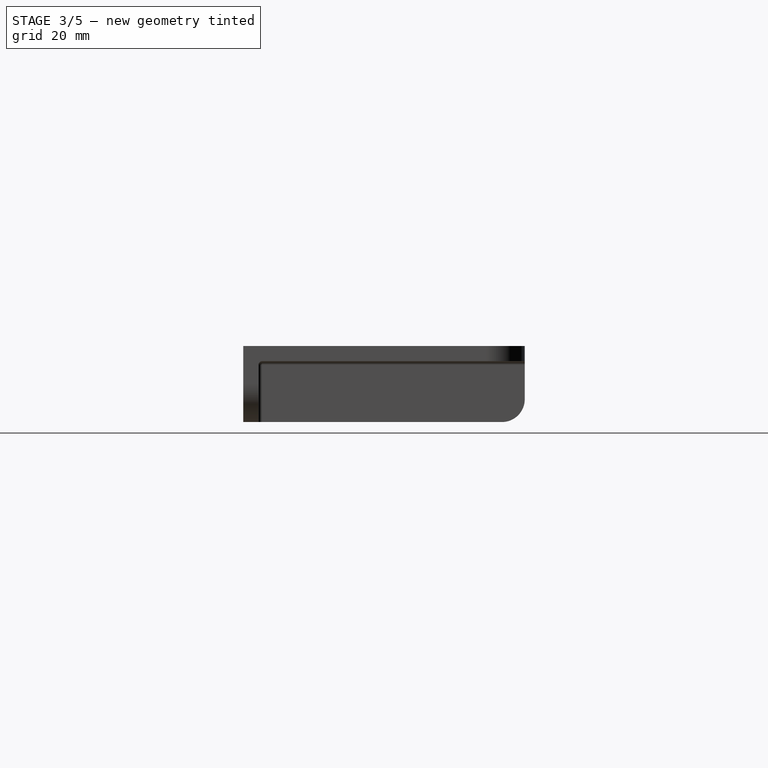
[diagram: stage 3 of 5 — right view after this stage's code; geometry added in this stage tinted green]
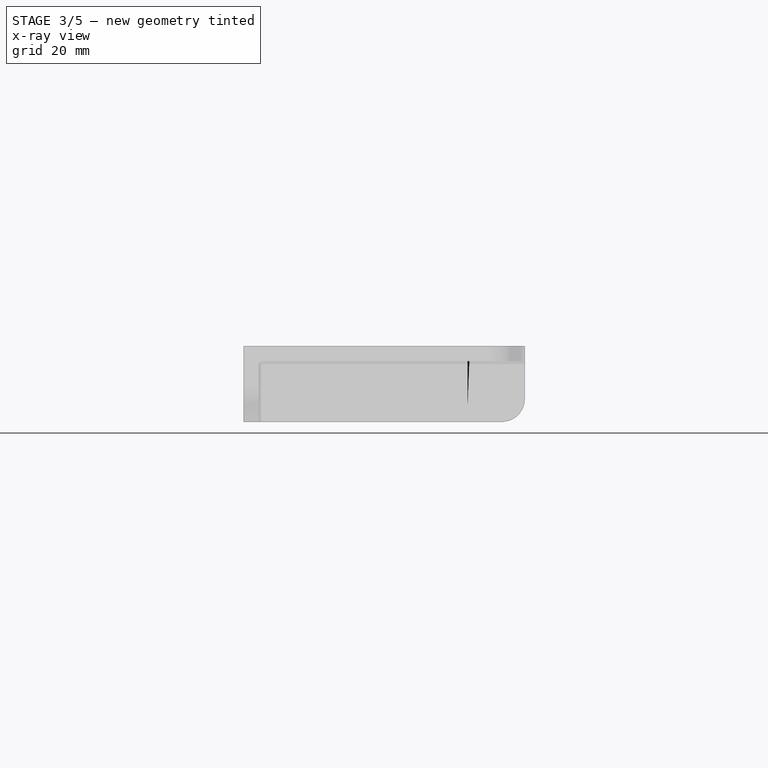
[diagram: stage 3 of 5 — x-ray composite at the right view; earlier geometry ghosted, this stage's added geometry solid]
FEATURE [Sketcher::SketchObject] Sketch022
  ExternalGeometry = -> [Pocket004]
  Placement = pos=(0,0,18) rot=(1,0,0;3.14159rad)
  Support = -> Pocket004 [Face65]
  sketch-geometry (4):
    g0: LineSegment StartX=-59.5 StartY=7.33144 StartZ=0 EndX=-59.5 EndY=-7.33144 EndZ=0
    g1: LineSegment StartX=59.5 StartY=7.33144 StartZ=0 EndX=59.5 EndY=-7.33144 EndZ=0
    g2: ArcOfCircle CenterX=-50 CenterY=0 CenterZ=0 NormalX=0 NormalY=0 NormalZ=1 Radius=12 StartAngle=3.79886 EndAngle=8.76751
    g3: ArcOfCircle CenterX=50 CenterY=0 CenterZ=0 NormalX=0 NormalY=0 NormalZ=1 Radius=12 StartAngle=0.657264 EndAngle=5.62592
  constraints (4):
    c: Coincident(g0,g2)
    c: Coincident(g1,g3)
    c: DistanceX(g-1,g3) = 50
    c: DistanceX(g-1,g2) = -50
FEATURE [PartDesign::Pocket] Pocket005
  Length = 5
  Reversed = true
  Sketch = -> Sketch022
  Type = 1
FEATURE [Sketcher::SketchObject] Sketch023
  Placement = pos=(0,0,16) rot=(1,0,0;3.14159rad)
  Support = -> Pocket005 [Face5]
  sketch-geometry (5):
    g0: LineSegment StartX=-59.5 StartY=-10 StartZ=0 EndX=-45 EndY=-10 EndZ=0
    g1: LineSegment StartX=-45 StartY=-10 StartZ=0 EndX=-45 EndY=-26.9603 EndZ=0
    g2: LineSegment StartX=-59.5 StartY=-37 StartZ=0 EndX=-59.5 EndY=-10 EndZ=0
    g3: ArcOfCircle CenterX=-35.5 CenterY=-49 CenterZ=0 NormalX=0 NormalY=0 NormalZ=1 Radius=24 StartAngle=1.97777 EndAngle=2.61799
    g4: LineSegment StartX=-59.5 StartY=-37 StartZ=0 EndX=-56.2846 EndY=-37 EndZ=0
  constraints (5):
    c: Coincident(g0,g1)
    c: Coincident(g0,g2)
    c: Coincident(g1,g3)
    c: Coincident(g2,g4)
    c: Coincident(g3,g4)
FEATURE [PartDesign::Pad] Pad001
  Length = 12
  Length2 = 100
  Sketch = -> Sketch023
  Type = 0
FEATURE [PartDesign::Fillet] Fillet
  Base = -> Pad001 [Edge32,Edge7,Edge106,Edge30]
  Radius = 10
FEATURE [PartDesign::Fillet] Fillet001
  Base = -> Fillet [Edge8,Edge65,Edge52]
  Radius = 6
FEATURE [PartDesign::Fillet] Fillet002
  Base = -> Fillet001 [Edge99]
  Radius = 3
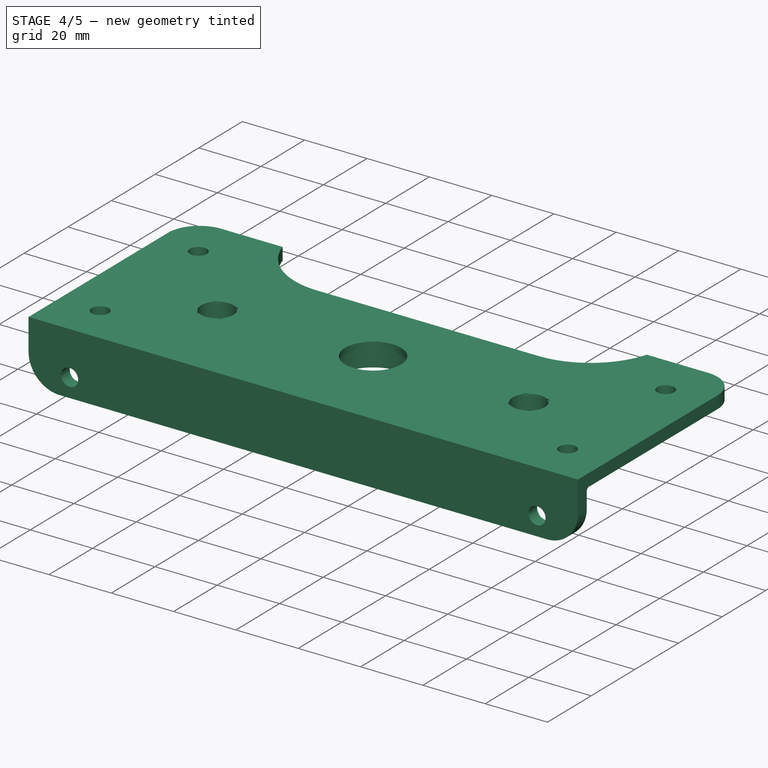
[diagram: stage 4 of 5 — iso view after this stage's code; geometry added in this stage tinted green]
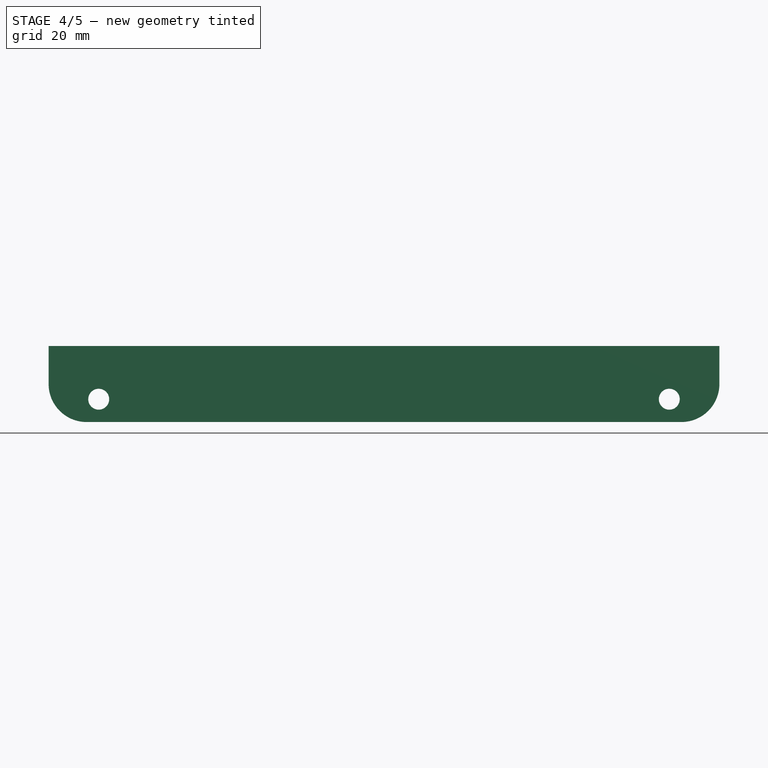
[diagram: stage 4 of 5 — front view after this stage's code; geometry added in this stage tinted green]
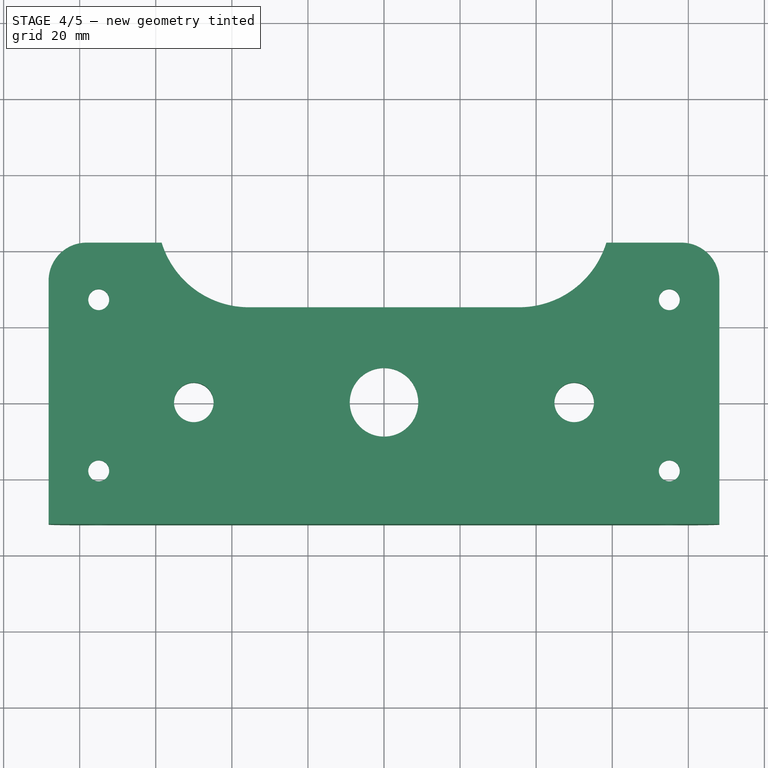
[diagram: stage 4 of 5 — top view after this stage's code; geometry added in this stage tinted green]
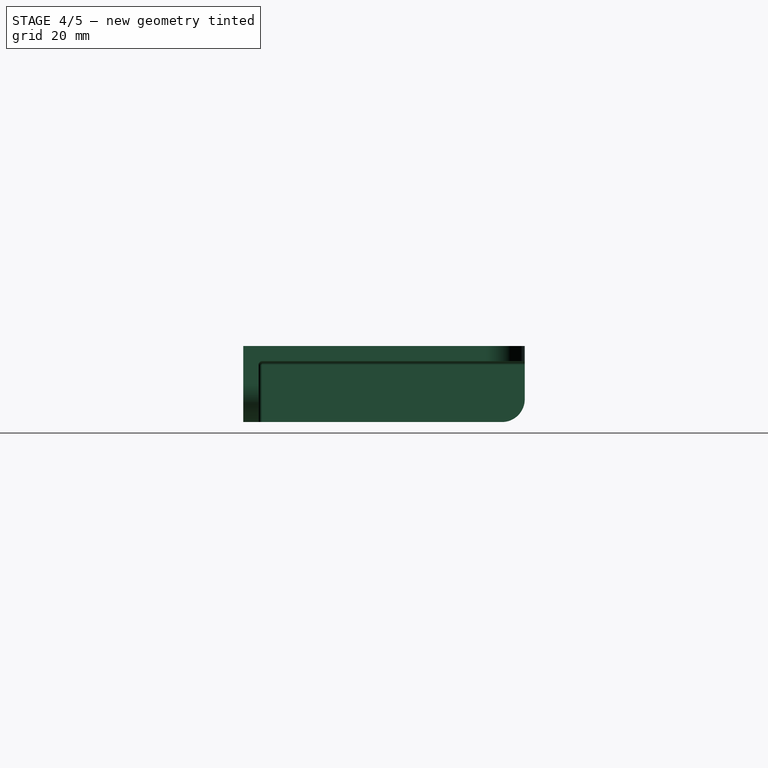
[diagram: stage 4 of 5 — right view after this stage's code; geometry added in this stage tinted green]
FEATURE [PartDesign::Fillet] Fillet003
  Base = -> Fillet002 [Edge212,Edge214,Edge213]
  Radius = 1
FEATURE [PartDesign::Fillet] Fillet004
  Base = -> Fillet003 [Edge145,Edge146,Edge149]
  Radius = 1
FEATURE [PartDesign::Fillet] Fillet005
  Base = -> Fillet004 [Edge101,Edge216,Edge258,Edge215,Edge100,Edge96,Edge103]
  Radius = 1
FEATURE [PartDesign::Fillet] Fillet006
  Base = -> Fillet005 [Edge40,Edge47,Edge36,Edge51,Edge31,Edge112,Edge113,Edge114,Edge115,Edge116,Edge117,Edge118,Edge119,Edge120]
  Radius = 1
FEATURE [PartDesign::Fillet] Fillet007
  Base = -> Fillet006 [Edge75,Edge77,Edge173,Edge178,Edge81,Edge88,Edge208]
  Radius = 1
FEATURE [PartDesign::Fillet] Fillet008
  Base = -> Fillet007 [Edge119,Edge120,Edge121,Edge122,Edge53,Edge123,Edge49,Edge124,Edge42,Edge125,Edge38,Edge126,Edge33,Edge127]
  Radius = 1
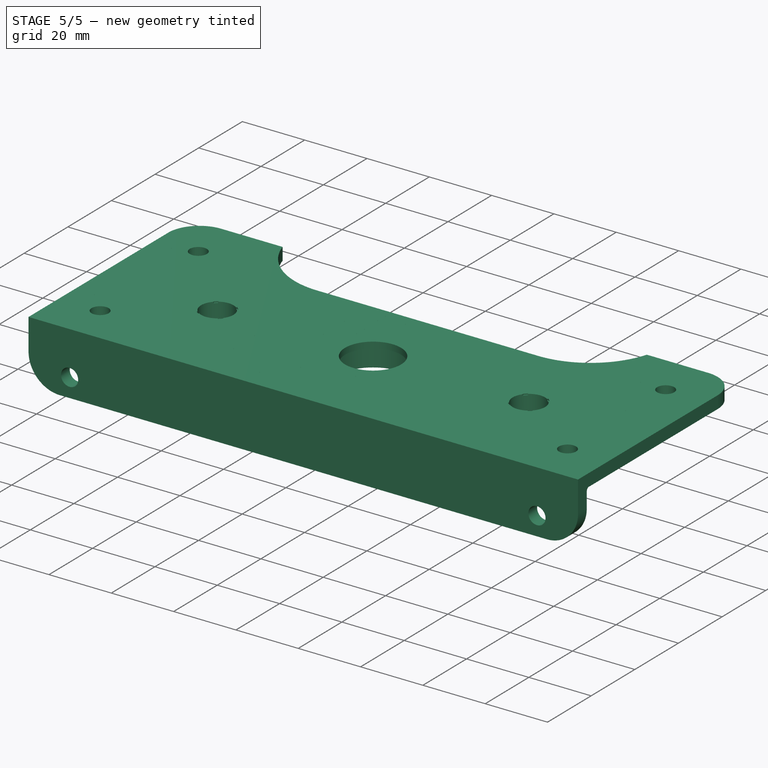
[diagram: stage 5 of 5 — iso view after this stage's code; geometry added in this stage tinted green]
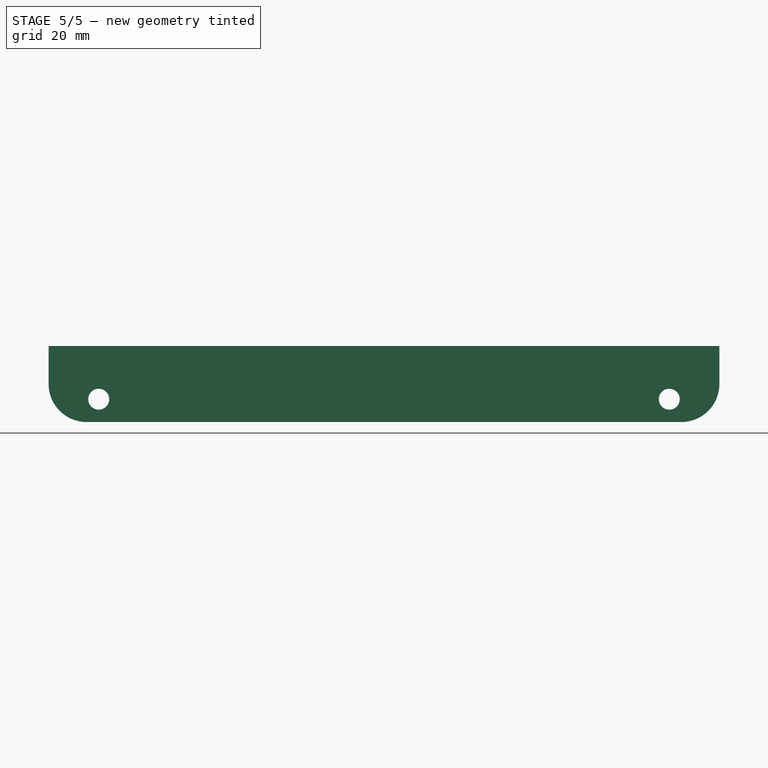
[diagram: stage 5 of 5 — front view after this stage's code; geometry added in this stage tinted green]
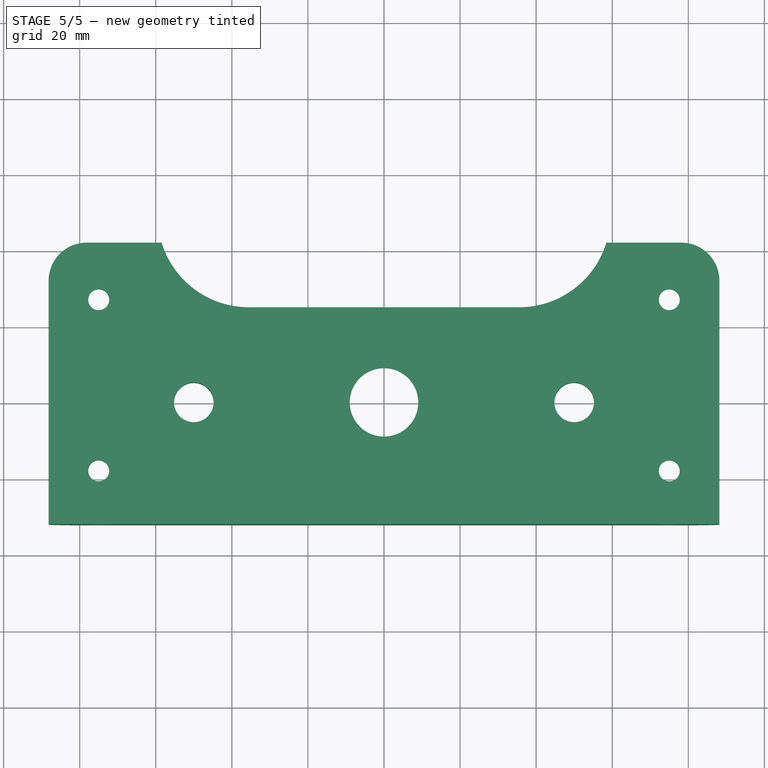
[diagram: stage 5 of 5 — top view after this stage's code; geometry added in this stage tinted green]
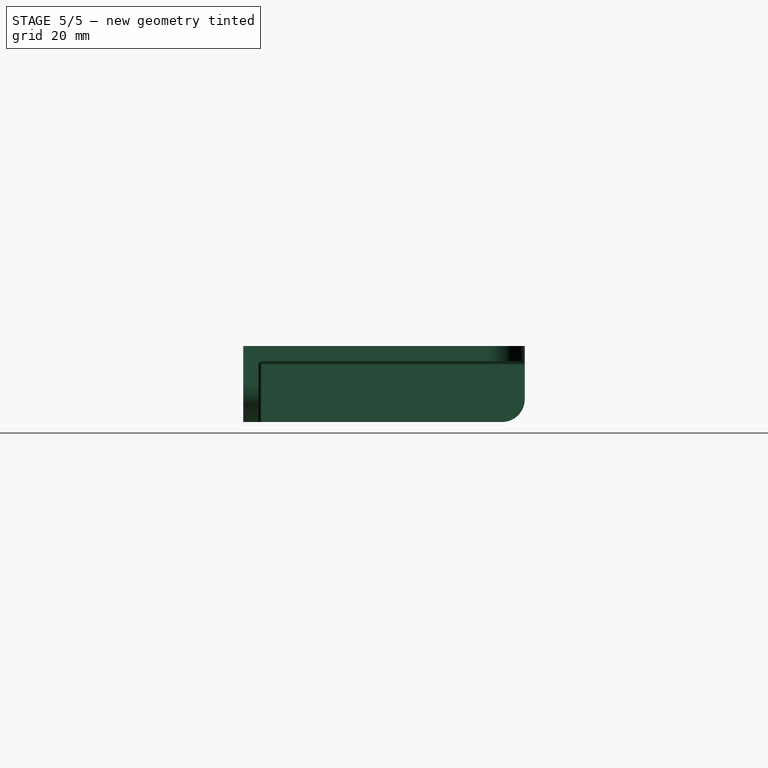
[diagram: stage 5 of 5 — right view after this stage's code; geometry added in this stage tinted green]
FEATURE [PartDesign::Fillet] Fillet009
  Base = -> Fillet008 [Edge109,Edge175,Edge256,Edge173,Edge180]
  Radius = 1
FEATURE [PartDesign::Fillet] Fillet010
  Base = -> Fillet009 [Edge48,Edge44,Edge39,Edge29,Edge26,Edge98,Edge100,Edge102,Edge99,Edge97]
  Radius = 1
FEATURE [PartDesign::Fillet] Fillet011
  Base = -> Fillet010 [Edge290,Edge286,Edge204,Edge86,Edge287,Edge82,Edge73]
  Radius = 1
FEATURE [PartDesign::Fillet] Fillet012
  Base = -> Fillet011 [Edge244]
  Radius = 4
FEATURE [PartDesign::Fillet] Fillet013
  Base = -> Fillet012 [Edge2,Edge1,Edge3,Edge5,Edge7,Edge9,Edge11,Edge15,Edge17,Edge19,Edge18,Edge16,Edge14,Edge12,Edge10]
  Radius = 0.7
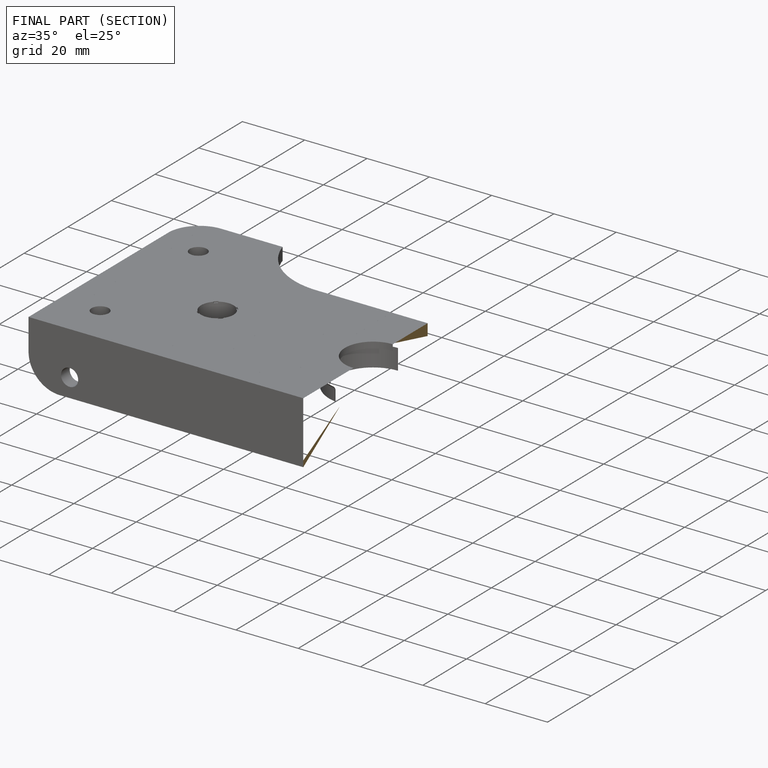
[diagram: finished part — half-section view (interior)]
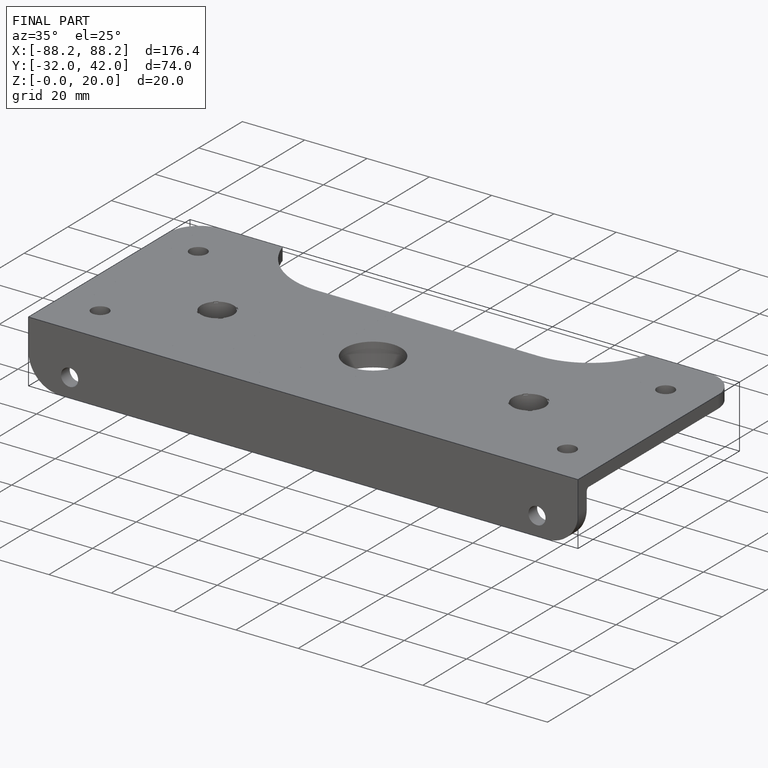
[diagram: finished part — iso view with bounding-box wireframe]
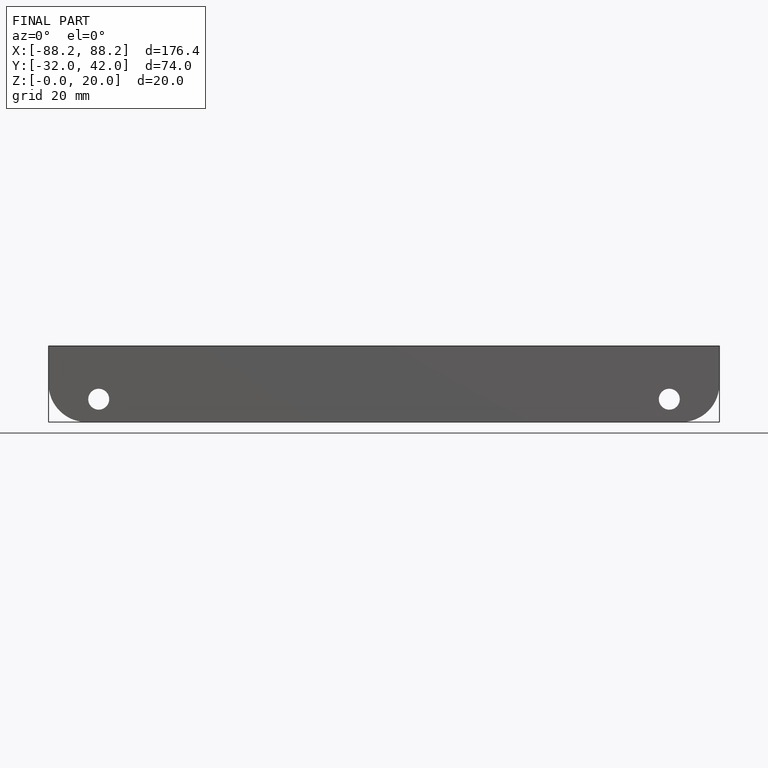
[diagram: finished part — front view with bounding-box wireframe]
